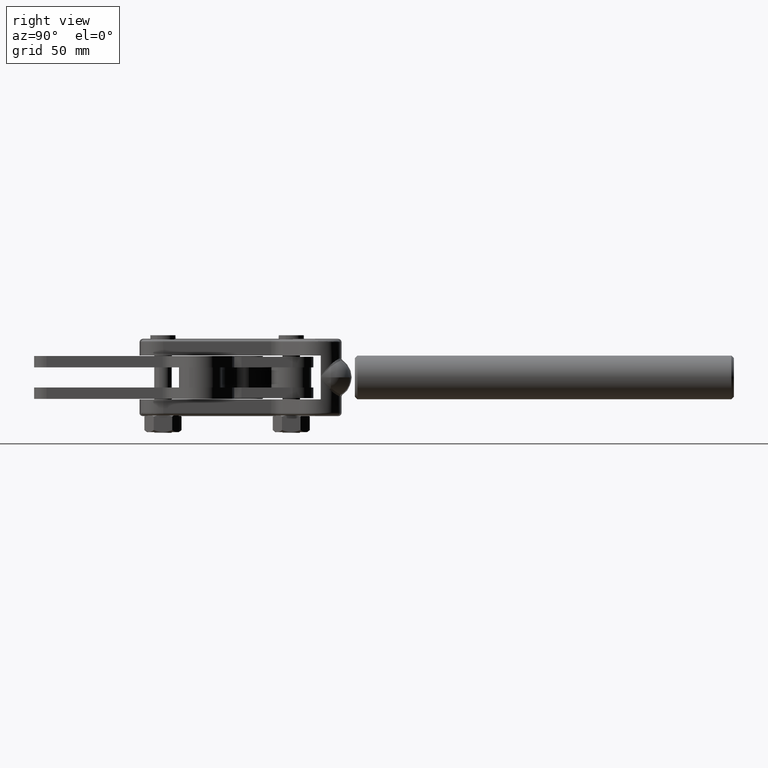
[diagram: clean part render]
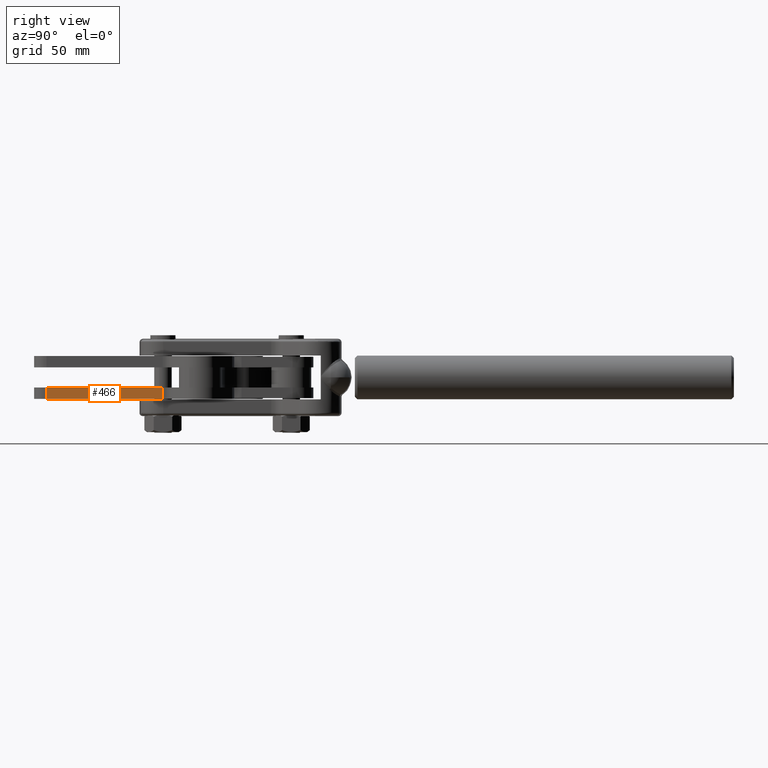
[diagram: same view with one face highlighted and labeled with its STEP entity id]
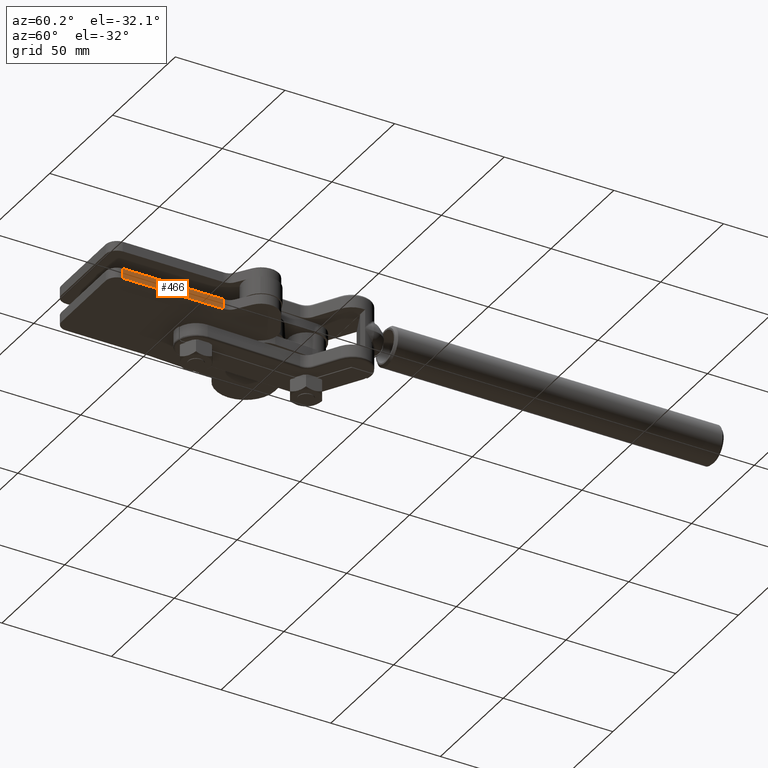
[diagram: same view with one face highlighted and labeled with its STEP entity id]
A machine part, right view. The second image highlights one B-rep face of the part: STEP entity #466.
A second angle (auxiliary view) of the same face is appended — the face is thin or edge-on in the first view.
In plain terms, the highlighted planar face has unit normal (1, -0, 0).
Its self-contained STEP definition (entity closure, byte-faithful):
#466 = ADVANCED_FACE ( 'NONE', ( #1650 ), #9139, .T. ) ;
#1020 = CARTESIAN_POINT ( 'NONE',  ( 22.14000000000002200, 50.87254489179821300, -3.499999999999995600 ) ) ;
#1228 = VECTOR ( 'NONE', #4491, 1000.000000000000000 ) ;
#1456 = VECTOR ( 'NONE', #11175, 1000.000000000000000 ) ;
#1526 = LINE ( 'NONE', #4069, #1228 ) ;
#1650 = FACE_OUTER_BOUND ( 'NONE', #3382, .T. ) ;
#1674 = CARTESIAN_POINT ( 'NONE',  ( 22.13999999999999300, 5.000000000000024900, -7.999999999999994700 ) ) ;
#1881 = ORIENTED_EDGE ( 'NONE', *, *, #8213, .F. ) ;
#1906 = EDGE_CURVE ( 'NONE', #3594, #10528, #3902, .T. ) ;
#2416 = DIRECTION ( 'NONE',  ( 0.0000000000000000000, 0.0000000000000000000, 1.000000000000000000 ) ) ;
#2458 = CARTESIAN_POINT ( 'NONE',  ( 22.14000000000002200, 50.87254489179821300, -7.999999999999994700 ) ) ;
#2493 = AXIS2_PLACEMENT_3D ( 'NONE', #4604, #7154, #11190 ) ;
#3377 = CARTESIAN_POINT ( 'NONE',  ( 22.13999999999999300, 5.000000000000024900, -3.499999999999995600 ) ) ;
#3382 = EDGE_LOOP ( 'NONE', ( #1881, #4903, #7149, #5336 ) ) ;
#3594 = VERTEX_POINT ( 'NONE', #1674 ) ;
#3808 = VECTOR ( 'NONE', #5132, 1000.000000000000000 ) ;
#3902 = LINE ( 'NONE', #8008, #1456 ) ;
#4069 = CARTESIAN_POINT ( 'NONE',  ( 22.14000000000001800, 5.000000000000024900, -7.999999999999994700 ) ) ;
#4491 = DIRECTION ( 'NONE',  ( 7.563231907314425800E-017, 1.000000000000000000, 0.0000000000000000000 ) ) ;
#4604 = CARTESIAN_POINT ( 'NONE',  ( 22.14000000000001800, 5.000000000000024900, -7.999999999999994700 ) ) ;
#4903 = ORIENTED_EDGE ( 'NONE', *, *, #1906, .F. ) ;
#4907 = VECTOR ( 'NONE', #2416, 1000.000000000000000 ) ;
#5132 = DIRECTION ( 'NONE',  ( 7.563231907314425800E-017, 1.000000000000000000, 0.0000000000000000000 ) ) ;
#5336 = ORIENTED_EDGE ( 'NONE', *, *, #9701, .T. ) ;
#7149 = ORIENTED_EDGE ( 'NONE', *, *, #10498, .T. ) ;
#7154 = DIRECTION ( 'NONE',  ( 1.000000000000000000, -7.563231907314424600E-017, 0.0000000000000000000 ) ) ;
#7304 = LINE ( 'NONE', #2458, #4907 ) ;
#7967 = CARTESIAN_POINT ( 'NONE',  ( 22.14000000000001800, 5.000000000000024900, -3.499999999999995600 ) ) ;
#8008 = CARTESIAN_POINT ( 'NONE',  ( 22.13999999999999300, 5.000000000000024900, -7.999999999999994700 ) ) ;
#8034 = CARTESIAN_POINT ( 'NONE',  ( 22.14000000000002200, 50.87254489179821300, -7.999999999999994700 ) ) ;
#8213 = EDGE_CURVE ( 'NONE', #10528, #8322, #8562, .T. ) ;
#8322 = VERTEX_POINT ( 'NONE', #1020 ) ;
#8562 = LINE ( 'NONE', #7967, #3808 ) ;
#8584 = VERTEX_POINT ( 'NONE', #8034 ) ;
#9139 = PLANE ( 'NONE',  #2493 ) ;
#9701 = EDGE_CURVE ( 'NONE', #8584, #8322, #7304, .T. ) ;
#10498 = EDGE_CURVE ( 'NONE', #3594, #8584, #1526, .T. ) ;
#10528 = VERTEX_POINT ( 'NONE', #3377 ) ;
#11175 = DIRECTION ( 'NONE',  ( 0.0000000000000000000, 0.0000000000000000000, 1.000000000000000000 ) ) ;
#11190 = DIRECTION ( 'NONE',  ( 7.563231907314424600E-017, 1.000000000000000000, 0.0000000000000000000 ) ) ;